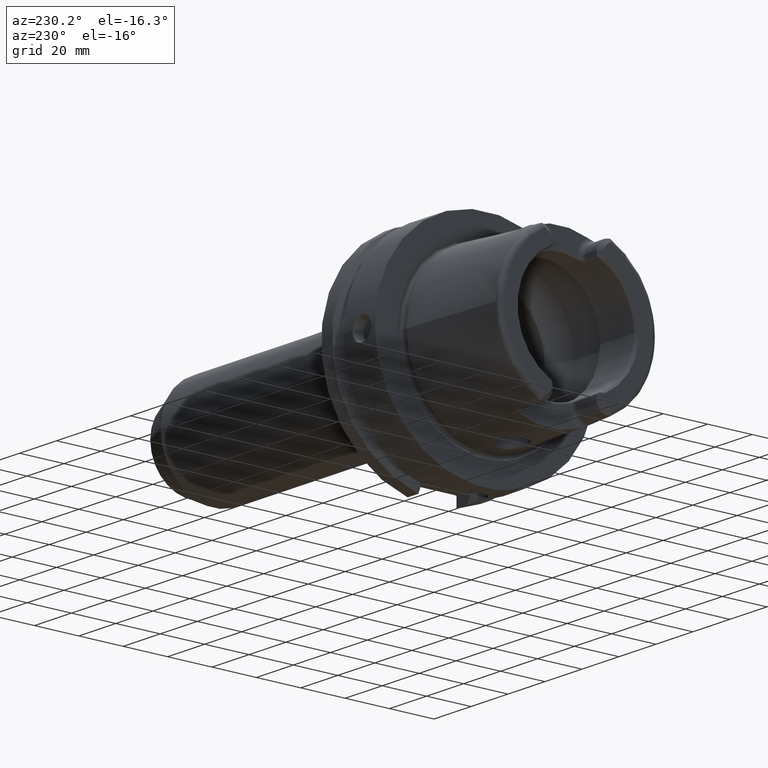
[diagram: clean part render]
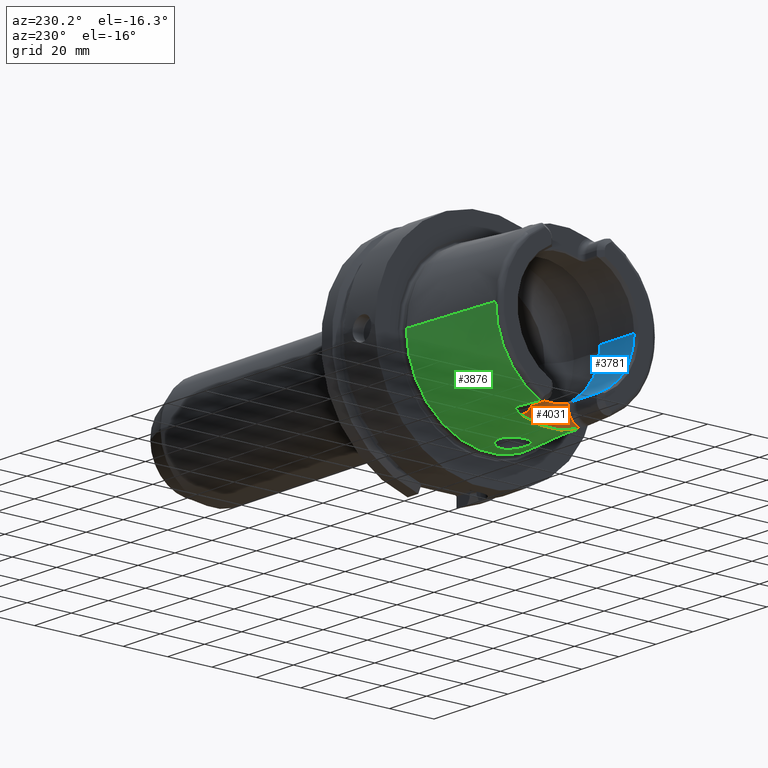
[diagram: same view with three faces highlighted in distinct colors, each labeled with its STEP entity id]
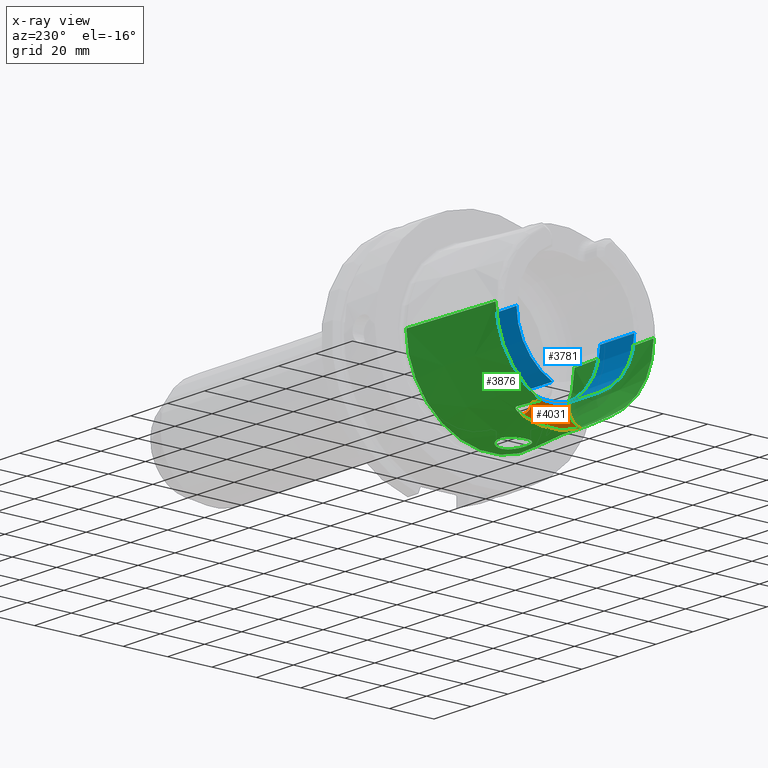
[diagram: x-ray of the same camera — body ghosted, the three highlighted faces saturated]
A machine part, auxiliary view with three faces highlighted in distinct colors.
The next image is the same camera in x-ray (body ghosted, the three faces saturated) — at least one of them is partly hidden behind the body in this view.
Their STEP definitions:

[orange] entity #4031 — the highlighted planar face has unit normal (-1, 0, 0).
#549=CARTESIAN_POINT('',(-3.5E1,0.E0,0.E0));
#550=DIRECTION('',(1.E0,0.E0,0.E0));
#551=DIRECTION('',(0.E0,-3.659355944317E-1,-9.306401779033E-1));
#552=AXIS2_PLACEMENT_3D('',#549,#550,#551);
#659=CARTESIAN_POINT('',(-3.5E1,1.326662904053E1,-3.373942900971E1));
#700=CARTESIAN_POINT('',(-3.5E1,-8.009999999994E0,-2.576044140549E1));
#701=CARTESIAN_POINT('',(-3.5E1,-7.269616392494E0,-2.599521452766E1));
#702=CARTESIAN_POINT('',(-3.5E1,-5.774680607735E0,-2.639793295020E1));
#703=CARTESIAN_POINT('',(-3.5E1,-3.481759859027E0,-2.680464578135E1));
#704=CARTESIAN_POINT('',(-3.5E1,-1.163574268408E0,-2.700848033442E1));
#705=CARTESIAN_POINT('',(-3.5E1,1.163574229636E0,-2.700848033529E1));
#706=CARTESIAN_POINT('',(-3.5E1,3.481759771636E0,-2.680464579107E1));
#707=CARTESIAN_POINT('',(-3.5E1,5.774680487919E0,-2.639793297771E1));
#708=CARTESIAN_POINT('',(-3.5E1,7.269616343063E0,-2.599521454333E1));
#709=CARTESIAN_POINT('',(-3.5E1,8.009999999993E0,-2.576044140549E1));
#711=DIRECTION('',(0.E0,-5.262912738182E-12,-1.E0));
#712=VECTOR('',#711,1.199558594507E0);
#713=CARTESIAN_POINT('',(-3.5E1,-8.009999999994E0,-2.576044140549E1));
#714=LINE('',#713,#712);
#715=CARTESIAN_POINT('',(-3.5E1,-1.501E1,-2.696E1));
#716=DIRECTION('',(-1.E0,0.E0,0.E0));
#717=DIRECTION('',(0.E0,1.E0,0.E0));
#718=AXIS2_PLACEMENT_3D('',#715,#716,#717);
#720=CARTESIAN_POINT('',(-3.5E1,1.501E1,-2.696E1));
#721=DIRECTION('',(-1.E0,0.E0,0.E0));
#722=DIRECTION('',(0.E0,-2.490529942106E-1,-9.684898585296E-1));
#723=AXIS2_PLACEMENT_3D('',#720,#721,#722);
#725=DIRECTION('',(0.E0,-6.865183864462E-12,1.E0));
#726=VECTOR('',#725,1.199558594503E0);
#727=CARTESIAN_POINT('',(-3.5E1,8.010000000001E0,-2.695999999999E1));
#728=LINE('',#727,#726);
#799=CARTESIAN_POINT('',(-3.5E1,-1.326662904053E1,-3.373942900971E1));
#3031=VERTEX_POINT('',#799);
#3032=VERTEX_POINT('',#659);
#3036=CARTESIAN_POINT('',(-3.5E1,-8.01E0,-2.696E1));
#3038=VERTEX_POINT('',#3036);
#3040=CARTESIAN_POINT('',(-3.5E1,8.01E0,-2.696E1));
#3042=VERTEX_POINT('',#3040);
#3048=VERTEX_POINT('',#700);
#3049=VERTEX_POINT('',#709);
#4016=CARTESIAN_POINT('',(-3.5E1,0.E0,0.E0));
#4017=DIRECTION('',(-1.E0,0.E0,0.E0));
#4018=DIRECTION('',(0.E0,0.E0,1.E0));
#4019=AXIS2_PLACEMENT_3D('',#4016,#4017,#4018);
#4020=PLANE('',#4019);
#4021=ORIENTED_EDGE('',*,*,#4007,.F.);
#4023=ORIENTED_EDGE('',*,*,#4022,.T.);
#4025=ORIENTED_EDGE('',*,*,#4024,.T.);
#4026=ORIENTED_EDGE('',*,*,#3855,.T.);
#4027=ORIENTED_EDGE('',*,*,#3913,.T.);
#4028=ORIENTED_EDGE('',*,*,#3925,.T.);
#4029=EDGE_LOOP('',(#4021,#4023,#4025,#4026,#4027,#4028));
#4030=FACE_OUTER_BOUND('',#4029,.F.);
#4031=ADVANCED_FACE('',(#4030),#4020,.T.);
#553=CIRCLE('',#552,3.6254E1);
#710=B_SPLINE_CURVE_WITH_KNOTS('',3,(#700,#701,#702,#703,#704,#705,#706,#707,
#708,#709),.UNSPECIFIED.,.F.,.F.,(4,1,1,1,1,1,1,4),(0.E0,1.428571428571E-1,
2.857142857143E-1,4.285714285714E-1,5.714285714286E-1,7.142857142857E-1,
8.571428571429E-1,1.E0),.UNSPECIFIED.);
#719=CIRCLE('',#718,7.E0);
#724=CIRCLE('',#723,7.E0);
#3855=EDGE_CURVE('',#3031,#3032,#553,.T.);
#3913=EDGE_CURVE('',#3032,#3042,#724,.T.);
#3925=EDGE_CURVE('',#3042,#3049,#728,.T.);
#4007=EDGE_CURVE('',#3048,#3049,#710,.T.);
#4022=EDGE_CURVE('',#3048,#3038,#714,.T.);
#4024=EDGE_CURVE('',#3038,#3031,#719,.T.);

[blue] entity #3781 — the highlighted cylindrical surface (partial cylindrical patch) has radius 26.5 mm, axis along (1, 0, 0).
#152=CARTESIAN_POINT('',(-4.85E1,1.051E1,-2.432673220965E1));
#172=CARTESIAN_POINT('',(-4.85E1,0.E0,0.E0));
#173=DIRECTION('',(-1.E0,0.E0,0.E0));
#174=DIRECTION('',(0.E0,1.E0,0.E0));
#175=AXIS2_PLACEMENT_3D('',#172,#173,#174);
#180=CARTESIAN_POINT('',(-4.85E1,-1.051E1,-2.432673220965E1));
#182=CARTESIAN_POINT('',(-4.85E1,0.E0,0.E0));
#183=DIRECTION('',(-1.E0,0.E0,0.E0));
#184=DIRECTION('',(0.E0,-3.966037735849E-1,-9.179898947038E-1));
#185=AXIS2_PLACEMENT_3D('',#182,#183,#184);
#454=CARTESIAN_POINT('',(-4.85E1,-1.051E1,-2.432673220965E1));
#455=CARTESIAN_POINT('',(-4.846009940760E1,-1.047009940760E1,
-2.434397066250E1));
#456=CARTESIAN_POINT('',(-4.842017594144E1,-1.043017594144E1,
-2.436110250799E1));
#457=CARTESIAN_POINT('',(-4.838022966775E1,-1.039022966775E1,
-2.437812805470E1));
#459=DIRECTION('',(1.E0,0.E0,0.E0));
#460=VECTOR('',#459,1.138022966775E1);
#461=CARTESIAN_POINT('',(-4.838022966775E1,-1.039022966775E1,
-2.437812805470E1));
#462=LINE('',#461,#460);
#463=CARTESIAN_POINT('',(-3.471132486541E1,-8.01E0,-2.526044140549E1));
#464=CARTESIAN_POINT('',(-3.470878365387E1,-8.120563234659E0,
-2.522538218006E1));
#465=CARTESIAN_POINT('',(-3.471906599640E1,-8.340498761004E0,
-2.515406323082E1));
#466=CARTESIAN_POINT('',(-3.478267622202E1,-8.672586520945E0,
-2.504149237512E1));
#467=CARTESIAN_POINT('',(-3.489268945815E1,-8.989467647906E0,
-2.492938353432E1));
#468=CARTESIAN_POINT('',(-3.504052322957E1,-9.277750297862E0,
-2.482340953473E1));
#469=CARTESIAN_POINT('',(-3.522199090026E1,-9.537479373862E0,
-2.472468297045E1));
#470=CARTESIAN_POINT('',(-3.543924040038E1,-9.773195748090E0,
-2.463237051390E1));
#471=CARTESIAN_POINT('',(-3.569196362013E1,-9.980705213956E0,
-2.454892857931E1));
#472=CARTESIAN_POINT('',(-3.598453186629E1,-1.015759575719E1,
-2.447617541727E1));
#473=CARTESIAN_POINT('',(-3.632143240491E1,-1.029570459018E1,
-2.441829554687E1));
#474=CARTESIAN_POINT('',(-3.667918985616E1,-1.037618705974E1,
-2.438412368561E1));
#475=CARTESIAN_POINT('',(-3.689481839480E1,-1.039022966775E1,
-2.437812805470E1));
#476=CARTESIAN_POINT('',(-3.7E1,-1.039022966775E1,-2.437812805470E1));
#478=CARTESIAN_POINT('',(-3.471132486541E1,8.01E0,-2.526044140549E1));
#479=CARTESIAN_POINT('',(-3.471132486541E1,7.271271578955E0,-2.549468967366E1));
#480=CARTESIAN_POINT('',(-3.471132486546E1,5.773250992792E0,-2.589833317849E1));
#481=CARTESIAN_POINT('',(-3.471132486544E1,3.481810319461E0,-2.630458298809E1));
#482=CARTESIAN_POINT('',(-3.471132486544E1,1.163586982585E0,-2.650849211583E1));
#483=CARTESIAN_POINT('',(-3.471132486544E1,-1.163586982585E0,
-2.650849211583E1));
#484=CARTESIAN_POINT('',(-3.471132486544E1,-3.481810319461E0,
-2.630458298809E1));
#485=CARTESIAN_POINT('',(-3.471132486546E1,-5.773250992791E0,
-2.589833317849E1));
#486=CARTESIAN_POINT('',(-3.471132486541E1,-7.271271578958E0,
-2.549468967366E1));
#487=CARTESIAN_POINT('',(-3.471132486541E1,-8.01E0,-2.526044140549E1));
#489=CARTESIAN_POINT('',(-3.7E1,1.039022966775E1,-2.437812805470E1));
#490=CARTESIAN_POINT('',(-3.689375760304E1,1.039022966775E1,-2.437812805470E1));
#491=CARTESIAN_POINT('',(-3.667635124759E1,1.037592175927E1,-2.438423721529E1));
#492=CARTESIAN_POINT('',(-3.631623052643E1,1.029415408513E1,-2.441895189414E1));
#493=CARTESIAN_POINT('',(-3.597947032639E1,1.015497495082E1,-2.447726388108E1));
#494=CARTESIAN_POINT('',(-3.568903934051E1,9.978495762119E0,-2.454982411868E1));
#495=CARTESIAN_POINT('',(-3.543805179144E1,9.771970406757E0,-2.463285308238E1));
#496=CARTESIAN_POINT('',(-3.522178538203E1,9.537157318169E0,-2.472480442904E1));
#497=CARTESIAN_POINT('',(-3.504048499348E1,9.277715471543E0,-2.482342368645E1));
#498=CARTESIAN_POINT('',(-3.489237648633E1,8.988811706632E0,-2.492962282131E1));
#499=CARTESIAN_POINT('',(-3.478230284625E1,8.671343229943E0,-2.504192722240E1));
#500=CARTESIAN_POINT('',(-3.471884880625E1,8.338547582645E0,-2.515470883480E1));
#501=CARTESIAN_POINT('',(-3.470880260289E1,8.119738798873E0,-2.522564360584E1));
#502=CARTESIAN_POINT('',(-3.471132486541E1,8.01E0,-2.526044140549E1));
#504=DIRECTION('',(1.E0,0.E0,0.E0));
#505=VECTOR('',#504,1.138022966775E1);
#506=CARTESIAN_POINT('',(-4.838022966775E1,1.039022966775E1,-2.437812805470E1));
#507=LINE('',#506,#505);
#508=CARTESIAN_POINT('',(-4.838022966775E1,1.039022966775E1,-2.437812805470E1));
#509=CARTESIAN_POINT('',(-4.842017594144E1,1.043017594144E1,-2.436110250799E1));
#510=CARTESIAN_POINT('',(-4.846009940760E1,1.047009940760E1,-2.434397066250E1));
#511=CARTESIAN_POINT('',(-4.85E1,1.051E1,-2.432673220965E1));
#513=DIRECTION('',(-1.E0,0.E0,0.E0));
#514=VECTOR('',#513,1.849662432703E1);
#515=CARTESIAN_POINT('',(-3.000337567297E1,2.65E1,0.E0));
#516=LINE('',#515,#514);
#517=CARTESIAN_POINT('',(-3.000337567297E1,0.E0,0.E0));
#518=DIRECTION('',(-1.E0,0.E0,0.E0));
#519=DIRECTION('',(0.E0,1.E0,0.E0));
#520=AXIS2_PLACEMENT_3D('',#517,#518,#519);
#522=DIRECTION('',(-1.E0,0.E0,0.E0));
#523=VECTOR('',#522,1.849662432703E1);
#524=CARTESIAN_POINT('',(-3.000337567297E1,-2.65E1,0.E0));
#525=LINE('',#524,#523);
#2927=CARTESIAN_POINT('',(-3.000337567297E1,2.65E1,0.E0));
#2928=VERTEX_POINT('',#2927);
#2929=CARTESIAN_POINT('',(-4.85E1,2.65E1,0.E0));
#2930=VERTEX_POINT('',#2929);
#2939=CARTESIAN_POINT('',(-3.000337567297E1,-2.65E1,0.E0));
#2940=VERTEX_POINT('',#2939);
#2941=CARTESIAN_POINT('',(-4.85E1,-2.65E1,0.E0));
#2942=VERTEX_POINT('',#2941);
#3052=CARTESIAN_POINT('',(-3.7E1,-1.039022966775E1,-2.437812805470E1));
#3053=VERTEX_POINT('',#3052);
#3054=CARTESIAN_POINT('',(-3.471132486541E1,-8.01E0,-2.526044140549E1));
#3055=VERTEX_POINT('',#3054);
#3056=CARTESIAN_POINT('',(-3.7E1,1.039022966775E1,-2.437812805470E1));
#3057=VERTEX_POINT('',#3056);
#3058=CARTESIAN_POINT('',(-3.471132486541E1,8.01E0,-2.526044140549E1));
#3059=VERTEX_POINT('',#3058);
#3076=CARTESIAN_POINT('',(-4.838022966775E1,1.039022966775E1,
-2.437812805470E1));
#3077=VERTEX_POINT('',#3076);
#3078=VERTEX_POINT('',#152);
#3095=CARTESIAN_POINT('',(-4.838022966775E1,-1.039022966775E1,
-2.437812805470E1));
#3096=VERTEX_POINT('',#3095);
#3097=VERTEX_POINT('',#180);
#3754=CARTESIAN_POINT('',(-5.3125E1,0.E0,0.E0));
#3755=DIRECTION('',(1.E0,0.E0,0.E0));
#3756=DIRECTION('',(0.E0,-1.E0,0.E0));
#3757=AXIS2_PLACEMENT_3D('',#3754,#3755,#3756);
#3758=CYLINDRICAL_SURFACE('',#3757,2.65E1);
#3760=ORIENTED_EDGE('',*,*,#3759,.T.);
#3762=ORIENTED_EDGE('',*,*,#3761,.T.);
#3764=ORIENTED_EDGE('',*,*,#3763,.F.);
#3766=ORIENTED_EDGE('',*,*,#3765,.F.);
#3768=ORIENTED_EDGE('',*,*,#3767,.F.);
#3769=ORIENTED_EDGE('',*,*,#3746,.F.);
#3770=ORIENTED_EDGE('',*,*,#3478,.T.);
#3771=ORIENTED_EDGE('',*,*,#3500,.F.);
#3773=ORIENTED_EDGE('',*,*,#3772,.F.);
#3775=ORIENTED_EDGE('',*,*,#3774,.T.);
#3777=ORIENTED_EDGE('',*,*,#3776,.T.);
#3778=ORIENTED_EDGE('',*,*,#3512,.F.);
#3779=EDGE_LOOP('',(#3760,#3762,#3764,#3766,#3768,#3769,#3770,#3771,#3773,#3775,
#3777,#3778));
#3780=FACE_OUTER_BOUND('',#3779,.F.);
#3781=ADVANCED_FACE('',(#3780),#3758,.F.);
#176=CIRCLE('',#175,2.65E1);
#186=CIRCLE('',#185,2.65E1);
#458=B_SPLINE_CURVE_WITH_KNOTS('',3,(#454,#455,#456,#457),.UNSPECIFIED.,.F.,.F.,
(4,4),(0.E0,1.E0),.UNSPECIFIED.);
#477=B_SPLINE_CURVE_WITH_KNOTS('',3,(#463,#464,#465,#466,#467,#468,#469,#470,
#471,#472,#473,#474,#475,#476),.UNSPECIFIED.,.F.,.F.,(4,1,1,1,1,1,1,1,1,1,1,4),(
0.E0,9.090909090909E-2,1.818181818182E-1,2.727272727273E-1,3.636363636364E-1,
4.545454545455E-1,5.454545454545E-1,6.363636363636E-1,7.272727272727E-1,
8.181818181818E-1,9.090909090909E-1,1.E0),.UNSPECIFIED.);
#488=B_SPLINE_CURVE_WITH_KNOTS('',3,(#478,#479,#480,#481,#482,#483,#484,#485,
#486,#487),.UNSPECIFIED.,.F.,.F.,(4,1,1,1,1,1,1,4),(0.E0,1.428571428571E-1,
2.857142857143E-1,4.285714285714E-1,5.714285714286E-1,7.142857142857E-1,
8.571428571429E-1,1.E0),.UNSPECIFIED.);
#503=B_SPLINE_CURVE_WITH_KNOTS('',3,(#489,#490,#491,#492,#493,#494,#495,#496,
#497,#498,#499,#500,#501,#502),.UNSPECIFIED.,.F.,.F.,(4,1,1,1,1,1,1,1,1,1,1,4),(
0.E0,9.090909090909E-2,1.818181818182E-1,2.727272727273E-1,3.636363636364E-1,
4.545454545455E-1,5.454545454545E-1,6.363636363636E-1,7.272727272727E-1,
8.181818181818E-1,9.090909090909E-1,1.E0),.UNSPECIFIED.);
#512=B_SPLINE_CURVE_WITH_KNOTS('',3,(#508,#509,#510,#511),.UNSPECIFIED.,.F.,.F.,
(4,4),(0.E0,1.E0),.UNSPECIFIED.);
#521=CIRCLE('',#520,2.65E1);
#3478=EDGE_CURVE('',#3077,#3078,#512,.T.);
#3500=EDGE_CURVE('',#2930,#3078,#176,.T.);
#3512=EDGE_CURVE('',#3097,#2942,#186,.T.);
#3746=EDGE_CURVE('',#3077,#3057,#507,.T.);
#3759=EDGE_CURVE('',#3097,#3096,#458,.T.);
#3761=EDGE_CURVE('',#3096,#3053,#462,.T.);
#3763=EDGE_CURVE('',#3055,#3053,#477,.T.);
#3765=EDGE_CURVE('',#3059,#3055,#488,.T.);
#3767=EDGE_CURVE('',#3057,#3059,#503,.T.);
#3772=EDGE_CURVE('',#2928,#2930,#516,.T.);
#3774=EDGE_CURVE('',#2928,#2940,#521,.T.);
#3776=EDGE_CURVE('',#2940,#2942,#525,.T.);

[green] entity #3876 — the highlighted conical surface has half-angle 2.868 deg.
#307=CARTESIAN_POINT('',(-4.810007448473E1,0.E0,0.E0));
#308=DIRECTION('',(-1.E0,0.E0,0.E0));
#309=DIRECTION('',(0.E0,1.E0,0.E0));
#310=AXIS2_PLACEMENT_3D('',#307,#308,#309);
#392=CARTESIAN_POINT('',(-4.810007448473E1,0.E0,0.E0));
#393=DIRECTION('',(-1.E0,0.E0,0.E0));
#394=DIRECTION('',(0.E0,-4.403806547453E-1,-8.978111599474E-1));
#395=AXIS2_PLACEMENT_3D('',#392,#393,#394);
#542=CARTESIAN_POINT('',(-4.810007448473E1,1.567653238626E1,-3.196E1));
#543=CARTESIAN_POINT('',(-4.691253354608E1,1.581163323682E1,-3.196E1));
#544=CARTESIAN_POINT('',(-4.450693295241E1,1.608249060017E1,-3.196E1));
#545=CARTESIAN_POINT('',(-4.080822205394E1,1.649061651786E1,-3.196E1));
#546=CARTESIAN_POINT('',(-3.827971844003E1,1.676420418060E1,-3.196E1));
#547=CARTESIAN_POINT('',(-3.7E1,1.690135066910E1,-3.196E1));
#549=CARTESIAN_POINT('',(-3.5E1,0.E0,0.E0));
#550=DIRECTION('',(1.E0,0.E0,0.E0));
#551=DIRECTION('',(0.E0,-3.659355944317E-1,-9.306401779033E-1));
#552=AXIS2_PLACEMENT_3D('',#549,#550,#551);
#554=CARTESIAN_POINT('',(-3.7E1,-1.690135066910E1,-3.196E1));
#555=CARTESIAN_POINT('',(-3.827957528302E1,-1.676421952263E1,-3.196E1));
#556=CARTESIAN_POINT('',(-4.080788819039E1,-1.649065289085E1,-3.196E1));
#557=CARTESIAN_POINT('',(-4.450660828452E1,-1.608252688744E1,-3.196E1));
#558=CARTESIAN_POINT('',(-4.691239447940E1,-1.581164905777E1,-3.196E1));
#559=CARTESIAN_POINT('',(-4.810007448473E1,-1.567653238626E1,-3.196E1));
#561=DIRECTION('',(-9.987473526255E-1,5.003724236654E-2,0.E0));
#562=VECTOR('',#561,4.565726694029E1);
#563=CARTESIAN_POINT('',(-2.5E0,-3.788225E1,0.E0));
#564=LINE('',#563,#562);
#565=CARTESIAN_POINT('',(-2.5E0,0.E0,0.E0));
#566=DIRECTION('',(1.E0,0.E0,0.E0));
#567=DIRECTION('',(0.E0,-1.E0,0.E0));
#568=AXIS2_PLACEMENT_3D('',#565,#566,#567);
#570=DIRECTION('',(-9.987473526255E-1,-5.003724236654E-2,0.E0));
#571=VECTOR('',#570,4.565726694029E1);
#572=CARTESIAN_POINT('',(-2.5E0,3.788225E1,0.E0));
#573=LINE('',#572,#571);
#574=CARTESIAN_POINT('',(-8.500618228215E0,-4.475741567310E-11,
-3.758161092103E1));
#575=CARTESIAN_POINT('',(-8.500550626629E0,2.307123186996E-1,
-3.758164609326E1));
#576=CARTESIAN_POINT('',(-8.527361627144E0,7.336655055656E-1,
-3.757562989718E1));
#577=CARTESIAN_POINT('',(-8.658487901890E0,1.501607868725E0,-3.754653658895E1));
#578=CARTESIAN_POINT('',(-8.897257248323E0,2.287068896E0,-3.749470537780E1));
#579=CARTESIAN_POINT('',(-9.233930830616E0,3.038376631295E0,-3.742413833235E1));
#580=CARTESIAN_POINT('',(-9.665180423226E0,3.744542284435E0,-3.733806106411E1));
#581=CARTESIAN_POINT('',(-1.018494007596E1,4.392525906197E0,-3.724079839048E1));
#582=CARTESIAN_POINT('',(-1.078433252086E1,4.969742317677E0,-3.713748237766E1));
#583=CARTESIAN_POINT('',(-1.145295368828E1,5.465719413789E0,-3.703348699097E1));
#584=CARTESIAN_POINT('',(-1.217872434304E1,5.871741506149E0,-3.693411809702E1));
#585=CARTESIAN_POINT('',(-1.294907725396E1,6.181458789403E0,-3.684412609384E1));
#586=CARTESIAN_POINT('',(-1.375077304364E1,6.390383355882E0,-3.676749362246E1));
#587=CARTESIAN_POINT('',(-1.457124723519E1,6.496150992971E0,-3.670710043979E1));
#588=CARTESIAN_POINT('',(-1.539963323060E1,6.497327684605E0,-3.666473599908E1));
#589=CARTESIAN_POINT('',(-1.621811808436E1,6.394337052140E0,-3.664130538745E1));
#590=CARTESIAN_POINT('',(-1.701498565109E1,6.189982543680E0,-3.663607891146E1));
#591=CARTESIAN_POINT('',(-1.778004900083E1,5.887116868581E0,-3.664741303044E1));
#592=CARTESIAN_POINT('',(-1.850137732128E1,5.490146143225E0,-3.667277568766E1));
#593=CARTESIAN_POINT('',(-1.916799834207E1,5.004550368212E0,-3.670886700839E1));
#594=CARTESIAN_POINT('',(-1.976920462201E1,4.437176205297E0,-3.675182754134E1));
#595=CARTESIAN_POINT('',(-2.029477253260E1,3.796411168194E0,-3.679746060413E1));
#596=CARTESIAN_POINT('',(-2.073457092496E1,3.093790391877E0,-3.684142692236E1));
#597=CARTESIAN_POINT('',(-2.108101531841E1,2.341868855664E0,-3.687975533364E1));
#598=CARTESIAN_POINT('',(-2.132907064090E1,1.552529546171E0,-3.690920014808E1));
#599=CARTESIAN_POINT('',(-2.146979802624E1,7.662360037897E-1,
-3.692663777819E1));
#600=CARTESIAN_POINT('',(-2.149947827869E1,2.456572466609E-1,
-3.693041402385E1));
#601=CARTESIAN_POINT('',(-2.149938206728E1,4.252313622681E-11,
-3.693037255683E1));
#603=CARTESIAN_POINT('',(-2.149938206728E1,4.252313622681E-11,
-3.693037255683E1));
#604=CARTESIAN_POINT('',(-2.149945538697E1,-2.340479521171E-1,
-3.693040395485E1));
#605=CARTESIAN_POINT('',(-2.147182734210E1,-7.430736824871E-1,
-3.692689923808E1));
#606=CARTESIAN_POINT('',(-2.133729628437E1,-1.518670363132E0,
-3.691020402111E1));
#607=CARTESIAN_POINT('',(-2.109342961129E1,-2.309431654899E0,
-3.688118929283E1));
#608=CARTESIAN_POINT('',(-2.075099845802E1,-3.063198291705E0,
-3.684317083610E1));
#609=CARTESIAN_POINT('',(-2.031499413642E1,-3.768106404610E0,
-3.679936697460E1));
#610=CARTESIAN_POINT('',(-1.979289029767E1,-4.411650229581E0,
-3.675372219731E1));
#611=CARTESIAN_POINT('',(-1.919463266022E1,-4.982323872691E0,
-3.671056084722E1));
#612=CARTESIAN_POINT('',(-1.853041114464E1,-5.471591578572E0,
-3.667409350441E1));
#613=CARTESIAN_POINT('',(-1.781100487862E1,-5.872448697570E0,
-3.664820853921E1));
#614=CARTESIAN_POINT('',(-1.704753604412E1,-6.179316936003E0,
-3.663623504527E1));
#615=CARTESIAN_POINT('',(-1.625202603452E1,-6.387759294270E0,
-3.664073415043E1));
#616=CARTESIAN_POINT('',(-1.543496245560E1,-6.495024783349E0,
-3.666334839609E1));
#617=CARTESIAN_POINT('',(-1.460654750338E1,-6.498344270788E0,
-3.670491373185E1));
#618=CARTESIAN_POINT('',(-1.378596486485E1,-6.397082641248E0,
-3.676453213359E1));
#619=CARTESIAN_POINT('',(-1.298349373108E1,-6.192696568201E0,
-3.684047961027E1));
#620=CARTESIAN_POINT('',(-1.221144146647E1,-5.887281631963E0,
-3.692997057387E1));
#621=CARTESIAN_POINT('',(-1.148337668307E1,-5.485279169694E0,
-3.702903815359E1));
#622=CARTESIAN_POINT('',(-1.081197580096E1,-4.993009521795E0,
-3.713294698881E1));
#623=CARTESIAN_POINT('',(-1.020932849949E1,-4.419085304323E0,
-3.723640914420E1));
#624=CARTESIAN_POINT('',(-9.685901962872E0,-3.773893108114E0,
-3.733404753344E1));
#625=CARTESIAN_POINT('',(-9.250671307496E0,-3.069967665821E0,
-3.742070642908E1));
#626=CARTESIAN_POINT('',(-8.909811119218E0,-2.320344961222E0,
-3.749202098184E1));
#627=CARTESIAN_POINT('',(-8.666742386503E0,-1.536111417479E0,
-3.754472100539E1));
#628=CARTESIAN_POINT('',(-8.529385927200E0,-7.571760095601E-1,
-3.757517178087E1));
#629=CARTESIAN_POINT('',(-8.500529445925E0,-2.424682905367E-1,
-3.758165757513E1));
#630=CARTESIAN_POINT('',(-8.500618228215E0,-4.475741567310E-11,
-3.758161092103E1));
#644=CARTESIAN_POINT('',(-3.525270277560E1,1.501E1,-3.298688520224E1));
#645=CARTESIAN_POINT('',(-3.528534211849E1,1.513484846724E1,-3.292827892747E1));
#646=CARTESIAN_POINT('',(-3.535659114497E1,1.537361797185E1,-3.281400095423E1));
#647=CARTESIAN_POINT('',(-3.548419296966E1,1.570424630972E1,-3.264982183345E1));
#648=CARTESIAN_POINT('',(-3.562487069608E1,1.598931575733E1,-3.250314611781E1));
#649=CARTESIAN_POINT('',(-3.577616803803E1,1.623191524099E1,-3.237407229234E1));
#650=CARTESIAN_POINT('',(-3.593586343865E1,1.643375355599E1,-3.226300002168E1));
#651=CARTESIAN_POINT('',(-3.610247622728E1,1.659835163566E1,-3.216916661381E1));
#652=CARTESIAN_POINT('',(-3.628387335068E1,1.673284687743E1,-3.208910564772E1));
#653=CARTESIAN_POINT('',(-3.646929278561E1,1.682849462631E1,-3.202850145999E1));
#654=CARTESIAN_POINT('',(-3.665268151350E1,1.688632035229E1,-3.198763365132E1));
#655=CARTESIAN_POINT('',(-3.682605028784E1,1.691041315903E1,-3.196506559814E1));
#656=CARTESIAN_POINT('',(-3.694247506704E1,1.690751557406E1,-3.196E1));
#657=CARTESIAN_POINT('',(-3.7E1,1.690135066910E1,-3.196E1));
#659=CARTESIAN_POINT('',(-3.5E1,1.326662904053E1,-3.373942900971E1));
#660=CARTESIAN_POINT('',(-3.5E1,1.343868538316E1,-3.367177499958E1));
#661=CARTESIAN_POINT('',(-3.501772820886E1,1.379762114623E1,-3.352663792870E1));
#662=CARTESIAN_POINT('',(-3.510106181354E1,1.437663105579E1,-3.327825241176E1));
#663=CARTESIAN_POINT('',(-3.519623214612E1,1.479399468517E1,-3.308828225672E1));
#664=CARTESIAN_POINT('',(-3.525270277560E1,1.501E1,-3.298688520224E1));
#794=CARTESIAN_POINT('',(-3.525270277560E1,-1.501E1,-3.298688520224E1));
#795=CARTESIAN_POINT('',(-3.519623503110E1,-1.479400572048E1,
-3.308827707653E1));
#796=CARTESIAN_POINT('',(-3.510106651291E1,-1.437665722375E1,
-3.327824091962E1));
#797=CARTESIAN_POINT('',(-3.501772741615E1,-1.379761960865E1,
-3.352663874321E1));
#798=CARTESIAN_POINT('',(-3.5E1,-1.343868456055E1,-3.367177532304E1));
#799=CARTESIAN_POINT('',(-3.5E1,-1.326662904053E1,-3.373942900971E1));
#806=CARTESIAN_POINT('',(-3.7E1,-1.690135066910E1,-3.196E1));
#807=CARTESIAN_POINT('',(-3.694105098899E1,-1.690766819146E1,-3.196E1));
#808=CARTESIAN_POINT('',(-3.682165804795E1,-1.691069512865E1,
-3.196516571864E1));
#809=CARTESIAN_POINT('',(-3.663738639512E1,-1.688312526699E1,
-3.199018906640E1));
#810=CARTESIAN_POINT('',(-3.645510025775E1,-1.682223827784E1,
-3.203259314290E1));
#811=CARTESIAN_POINT('',(-3.627410510575E1,-1.672636778758E1,
-3.209303313888E1));
#812=CARTESIAN_POINT('',(-3.609632853779E1,-1.659293907050E1,
-3.217230584166E1));
#813=CARTESIAN_POINT('',(-3.592925092948E1,-1.642640915267E1,
-3.226711747878E1));
#814=CARTESIAN_POINT('',(-3.576988123363E1,-1.622286102910E1,
-3.237896532757E1));
#815=CARTESIAN_POINT('',(-3.561995095366E1,-1.598020953691E1,
-3.250789603110E1));
#816=CARTESIAN_POINT('',(-3.548248183207E1,-1.569950921203E1,
-3.265215582464E1));
#817=CARTESIAN_POINT('',(-3.535882357255E1,-1.537978468576E1,
-3.281096523600E1));
#818=CARTESIAN_POINT('',(-3.528614819240E1,-1.513793177358E1,
-3.292683156410E1));
#819=CARTESIAN_POINT('',(-3.525270277560E1,-1.501E1,-3.298688520224E1));
#2899=CARTESIAN_POINT('',(-2.5E0,3.788225E1,0.E0));
#2900=CARTESIAN_POINT('',(-2.5E0,-3.788225E1,0.E0));
#2901=VERTEX_POINT('',#2899);
#2902=VERTEX_POINT('',#2900);
#2903=CARTESIAN_POINT('',(-4.810007448473E1,3.559768626831E1,0.E0));
#2904=VERTEX_POINT('',#2903);
#2905=CARTESIAN_POINT('',(-4.810007448473E1,-3.559768626831E1,0.E0));
#2906=VERTEX_POINT('',#2905);
#3023=CARTESIAN_POINT('',(-4.810007448473E1,1.567653238626E1,-3.196E1));
#3024=VERTEX_POINT('',#3023);
#3025=CARTESIAN_POINT('',(-4.810007448473E1,-1.567653238626E1,-3.196E1));
#3026=VERTEX_POINT('',#3025);
#3028=CARTESIAN_POINT('',(-3.525270277560E1,-1.501E1,-3.298688520224E1));
#3030=VERTEX_POINT('',#3028);
#3031=VERTEX_POINT('',#799);
#3032=VERTEX_POINT('',#659);
#3033=VERTEX_POINT('',#664);
#3044=CARTESIAN_POINT('',(-3.7E1,-1.690135066910E1,-3.196E1));
#3045=VERTEX_POINT('',#3044);
#3046=CARTESIAN_POINT('',(-3.7E1,1.690135066910E1,-3.196E1));
#3047=VERTEX_POINT('',#3046);
#3112=VERTEX_POINT('',#574);
#3113=VERTEX_POINT('',#601);
#3844=CARTESIAN_POINT('',(-2.530003724237E1,0.E0,0.E0));
#3845=DIRECTION('',(1.E0,0.E0,0.E0));
#3846=DIRECTION('',(0.E0,-1.E0,0.E0));
#3847=AXIS2_PLACEMENT_3D('',#3844,#3845,#3846);
#3848=CONICAL_SURFACE('',#3847,3.673996813416E1,2.868120487315E0);
#3850=ORIENTED_EDGE('',*,*,#3849,.T.);
#3852=ORIENTED_EDGE('',*,*,#3851,.F.);
#3854=ORIENTED_EDGE('',*,*,#3853,.F.);
#3856=ORIENTED_EDGE('',*,*,#3855,.F.);
#3858=ORIENTED_EDGE('',*,*,#3857,.F.);
#3860=ORIENTED_EDGE('',*,*,#3859,.F.);
#3861=ORIENTED_EDGE('',*,*,#3835,.T.);
#3862=ORIENTED_EDGE('',*,*,#3674,.T.);
#3863=ORIENTED_EDGE('',*,*,#3376,.F.);
#3865=ORIENTED_EDGE('',*,*,#3864,.T.);
#3866=ORIENTED_EDGE('',*,*,#3372,.T.);
#3867=ORIENTED_EDGE('',*,*,#3653,.T.);
#3868=EDGE_LOOP('',(#3850,#3852,#3854,#3856,#3858,#3860,#3861,#3862,#3863,#3865,
#3866,#3867));
#3869=FACE_OUTER_BOUND('',#3868,.F.);
#3871=ORIENTED_EDGE('',*,*,#3870,.F.);
#3873=ORIENTED_EDGE('',*,*,#3872,.F.);
#3874=EDGE_LOOP('',(#3871,#3873));
#3875=FACE_BOUND('',#3874,.F.);
#3876=ADVANCED_FACE('',(#3869,#3875),#3848,.T.);
#311=CIRCLE('',#310,3.559768626831E1);
#396=CIRCLE('',#395,3.559768626831E1);
#548=B_SPLINE_CURVE_WITH_KNOTS('',3,(#542,#543,#544,#545,#546,#547),
.UNSPECIFIED.,.F.,.F.,(4,1,1,4),(0.E0,3.333333333333E-1,6.666666666667E-1,1.E0),
.UNSPECIFIED.);
#553=CIRCLE('',#552,3.6254E1);
#560=B_SPLINE_CURVE_WITH_KNOTS('',3,(#554,#555,#556,#557,#558,#559),
.UNSPECIFIED.,.F.,.F.,(4,1,1,4),(0.E0,3.333333333333E-1,6.666666666667E-1,1.E0),
.UNSPECIFIED.);
#569=CIRCLE('',#568,3.788225E1);
#602=B_SPLINE_CURVE_WITH_KNOTS('',3,(#574,#575,#576,#577,#578,#579,#580,#581,
#582,#583,#584,#585,#586,#587,#588,#589,#590,#591,#592,#593,#594,#595,#596,#597,
#598,#599,#600,#601),.UNSPECIFIED.,.F.,.F.,(4,1,1,1,1,1,1,1,1,1,1,1,1,1,1,1,1,1,
1,1,1,1,1,1,1,4),(0.E0,3.441266963499E-2,7.481788366542E-2,1.152230976959E-1,
1.556283117263E-1,1.960335257567E-1,2.364387397872E-1,2.768439538176E-1,
3.172491678480E-1,3.576543818785E-1,3.980595959089E-1,4.384648099393E-1,
4.788700239698E-1,5.192752380002E-1,5.596804520306E-1,6.000856660611E-1,
6.404908800915E-1,6.808960941219E-1,7.213013081524E-1,7.617065221828E-1,
8.021117362132E-1,8.425169502437E-1,8.829221642741E-1,9.233273783045E-1,
9.637325923350E-1,1.E0),.UNSPECIFIED.);
#631=B_SPLINE_CURVE_WITH_KNOTS('',3,(#603,#604,#605,#606,#607,#608,#609,#610,
#611,#612,#613,#614,#615,#616,#617,#618,#619,#620,#621,#622,#623,#624,#625,#626,
#627,#628,#629,#630),.UNSPECIFIED.,.F.,.F.,(4,1,1,1,1,1,1,1,1,1,1,1,1,1,1,1,1,1,
1,1,1,1,1,1,1,4),(0.E0,3.452929677679E-2,7.493307390290E-2,1.153368510290E-1,
1.557406281551E-1,1.961444052812E-1,2.365481824073E-1,2.769519595334E-1,
3.173557366596E-1,3.577595137857E-1,3.981632909118E-1,4.385670680379E-1,
4.789708451640E-1,5.193746222901E-1,5.597783994162E-1,6.001821765423E-1,
6.405859536684E-1,6.809897307945E-1,7.213935079206E-1,7.617972850467E-1,
8.022010621729E-1,8.426048392990E-1,8.830086164251E-1,9.234123935512E-1,
9.638161706773E-1,1.E0),.UNSPECIFIED.);
#658=B_SPLINE_CURVE_WITH_KNOTS('',3,(#644,#645,#646,#647,#648,#649,#650,#651,
#652,#653,#654,#655,#656,#657),.UNSPECIFIED.,.F.,.F.,(4,1,1,1,1,1,1,1,1,1,1,4),(
0.E0,9.090909090909E-2,1.818181818182E-1,2.727272727273E-1,3.636363636364E-1,
4.545454545455E-1,5.454545454545E-1,6.363636363636E-1,7.272727272727E-1,
8.181818181818E-1,9.090909090909E-1,1.E0),.UNSPECIFIED.);
#665=B_SPLINE_CURVE_WITH_KNOTS('',3,(#659,#660,#661,#662,#663,#664),
.UNSPECIFIED.,.F.,.F.,(4,1,1,4),(0.E0,3.333333333333E-1,6.666666666667E-1,1.E0),
.UNSPECIFIED.);
#800=B_SPLINE_CURVE_WITH_KNOTS('',3,(#794,#795,#796,#797,#798,#799),
.UNSPECIFIED.,.F.,.F.,(4,1,1,4),(0.E0,3.333333333333E-1,6.666666666667E-1,1.E0),
.UNSPECIFIED.);
#820=B_SPLINE_CURVE_WITH_KNOTS('',3,(#806,#807,#808,#809,#810,#811,#812,#813,
#814,#815,#816,#817,#818,#819),.UNSPECIFIED.,.F.,.F.,(4,1,1,1,1,1,1,1,1,1,1,4),(
0.E0,9.090909090909E-2,1.818181818182E-1,2.727272727273E-1,3.636363636364E-1,
4.545454545455E-1,5.454545454545E-1,6.363636363636E-1,7.272727272727E-1,
8.181818181818E-1,9.090909090909E-1,1.E0),.UNSPECIFIED.);
#3372=EDGE_CURVE('',#2901,#2904,#573,.T.);
#3376=EDGE_CURVE('',#2902,#2906,#564,.T.);
#3653=EDGE_CURVE('',#2904,#3024,#311,.T.);
#3674=EDGE_CURVE('',#3026,#2906,#396,.T.);
#3835=EDGE_CURVE('',#3045,#3026,#560,.T.);
#3849=EDGE_CURVE('',#3024,#3047,#548,.T.);
#3851=EDGE_CURVE('',#3033,#3047,#658,.T.);
#3853=EDGE_CURVE('',#3032,#3033,#665,.T.);
#3855=EDGE_CURVE('',#3031,#3032,#553,.T.);
#3857=EDGE_CURVE('',#3030,#3031,#800,.T.);
#3859=EDGE_CURVE('',#3045,#3030,#820,.T.);
#3864=EDGE_CURVE('',#2902,#2901,#569,.T.);
#3870=EDGE_CURVE('',#3112,#3113,#602,.T.);
#3872=EDGE_CURVE('',#3113,#3112,#631,.T.);